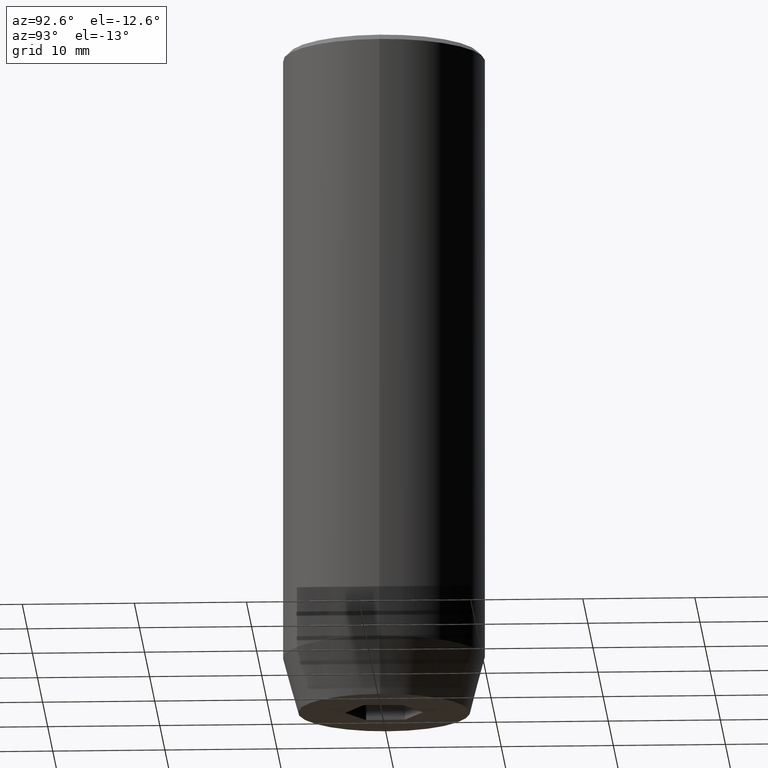
[diagram: clean part render]
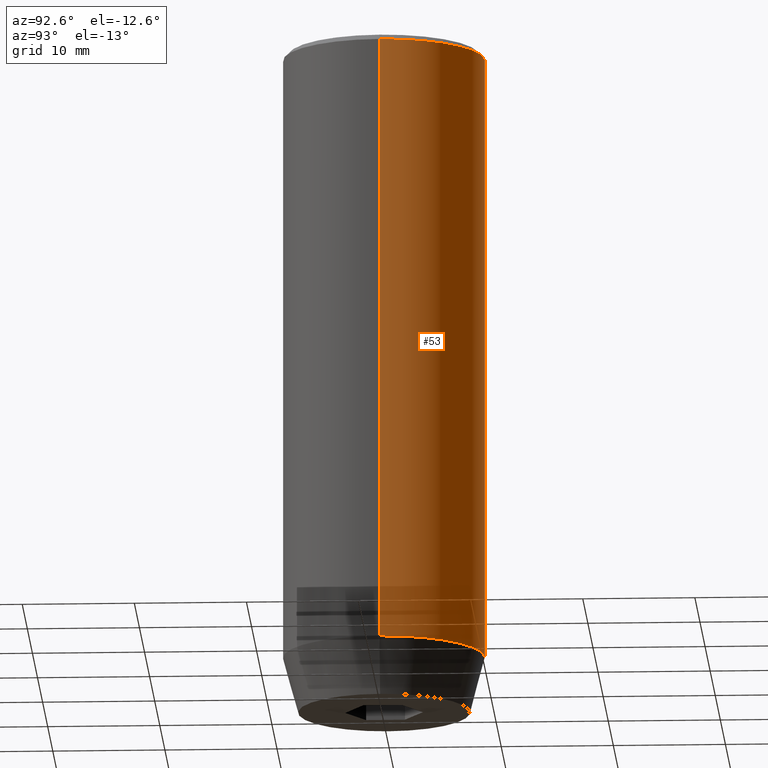
[diagram: same view with one face highlighted and labeled with its STEP entity id]
A machine part, auxiliary view. The second image highlights one B-rep face of the part: STEP entity #53.
In plain terms, the highlighted cylindrical surface (partial cylindrical patch) has radius 9 mm, axis along (-0, -0, 1).
Its self-contained STEP definition (entity closure, byte-faithful):
#2 = DIRECTION ( 'NONE',  ( -0.000000000000000000, -0.000000000000000000, 1.000000000000000000 ) ) ;
#7 = EDGE_LOOP ( 'NONE', ( #498, #365, #12, #380 ) ) ;
#12 = ORIENTED_EDGE ( 'NONE', *, *, #44, .T. ) ;
#31 = VERTEX_POINT ( 'NONE', #41 ) ;
#32 = LINE ( 'NONE', #203, #346 ) ;
#37 = FACE_OUTER_BOUND ( 'NONE', #7, .T. ) ;
#41 = CARTESIAN_POINT ( 'NONE',  ( -9.000000000000000000, 1.102182119232617714E-15, -0.4999999999999882871 ) ) ;
#44 = EDGE_CURVE ( 'NONE', #31, #565, #285, .T. ) ;
#53 = ADVANCED_FACE ( 'NONE', ( #37 ), #207, .T. ) ;
#55 = DIRECTION ( 'NONE',  ( -0.000000000000000000, -0.000000000000000000, 1.000000000000000000 ) ) ;
#60 = DIRECTION ( 'NONE',  ( -0.000000000000000000, -0.000000000000000000, 1.000000000000000000 ) ) ;
#76 = CARTESIAN_POINT ( 'NONE',  ( 9.000000000000000000, 0.000000000000000000, -55.00000000000000000 ) ) ;
#77 = DIRECTION ( 'NONE',  ( 0.000000000000000000, 0.000000000000000000, -1.000000000000000000 ) ) ;
#123 = VERTEX_POINT ( 'NONE', #379 ) ;
#203 = CARTESIAN_POINT ( 'NONE',  ( 9.000000000000000000, 0.000000000000000000, 0.000000000000000000 ) ) ;
#206 = CARTESIAN_POINT ( 'NONE',  ( 9.000000000000000000, 0.000000000000000000, -0.4999999999999882871 ) ) ;
#207 = CYLINDRICAL_SURFACE ( 'NONE', #480, 9.000000000000000000 ) ;
#233 = CARTESIAN_POINT ( 'NONE',  ( -9.000000000000000000, 1.102182119232617714E-15, 0.000000000000000000 ) ) ;
#240 = VECTOR ( 'NONE', #2, 1000.000000000000000 ) ;
#256 = CARTESIAN_POINT ( 'NONE',  ( 0.000000000000000000, 0.000000000000000000, -0.4999999999999882871 ) ) ;
#285 = CIRCLE ( 'NONE', #316, 9.000000000000000000 ) ;
#316 = AXIS2_PLACEMENT_3D ( 'NONE', #256, #77, #439 ) ;
#339 = CARTESIAN_POINT ( 'NONE',  ( 0.000000000000000000, 0.000000000000000000, -55.00000000000000000 ) ) ;
#346 = VECTOR ( 'NONE', #60, 1000.000000000000000 ) ;
#353 = CARTESIAN_POINT ( 'NONE',  ( 0.000000000000000000, 0.000000000000000000, 0.000000000000000000 ) ) ;
#365 = ORIENTED_EDGE ( 'NONE', *, *, #467, .T. ) ;
#379 = CARTESIAN_POINT ( 'NONE',  ( -9.000000000000000000, 1.102182119232617714E-15, -55.00000000000000000 ) ) ;
#380 = ORIENTED_EDGE ( 'NONE', *, *, #525, .F. ) ;
#404 = AXIS2_PLACEMENT_3D ( 'NONE', #339, #477, #524 ) ;
#439 = DIRECTION ( 'NONE',  ( 1.000000000000000000, 0.000000000000000000, 0.000000000000000000 ) ) ;
#467 = EDGE_CURVE ( 'NONE', #123, #31, #544, .T. ) ;
#477 = DIRECTION ( 'NONE',  ( -0.000000000000000000, -0.000000000000000000, 1.000000000000000000 ) ) ;
#480 = AXIS2_PLACEMENT_3D ( 'NONE', #353, #55, #531 ) ;
#485 = EDGE_CURVE ( 'NONE', #506, #123, #583, .T. ) ;
#498 = ORIENTED_EDGE ( 'NONE', *, *, #485, .T. ) ;
#506 = VERTEX_POINT ( 'NONE', #76 ) ;
#524 = DIRECTION ( 'NONE',  ( 1.000000000000000000, 0.000000000000000000, 0.000000000000000000 ) ) ;
#525 = EDGE_CURVE ( 'NONE', #506, #565, #32, .T. ) ;
#531 = DIRECTION ( 'NONE',  ( 1.000000000000000000, 0.000000000000000000, 0.000000000000000000 ) ) ;
#544 = LINE ( 'NONE', #233, #240 ) ;
#565 = VERTEX_POINT ( 'NONE', #206 ) ;
#583 = CIRCLE ( 'NONE', #404, 9.000000000000000000 ) ;